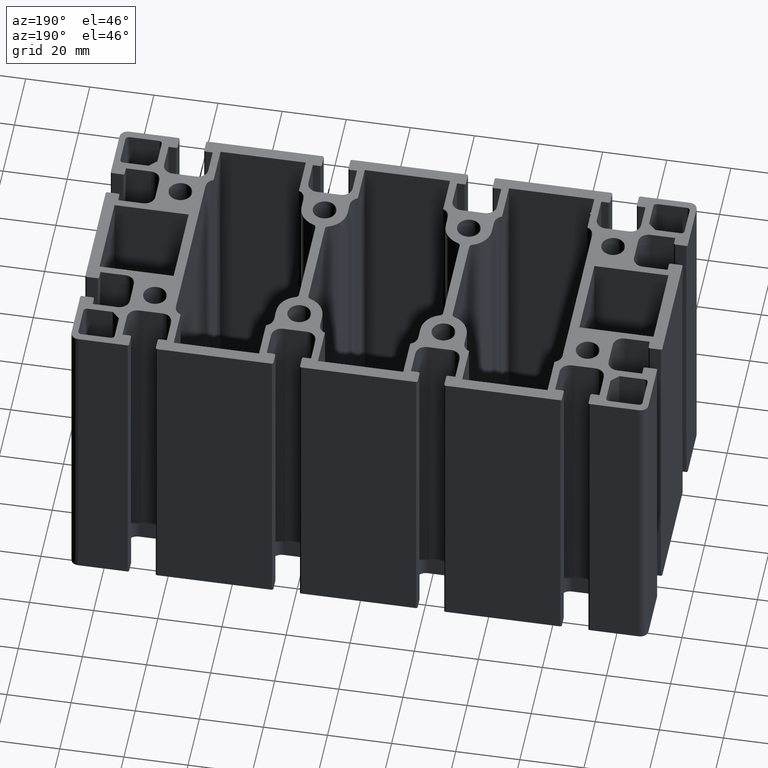
[diagram: clean part render]
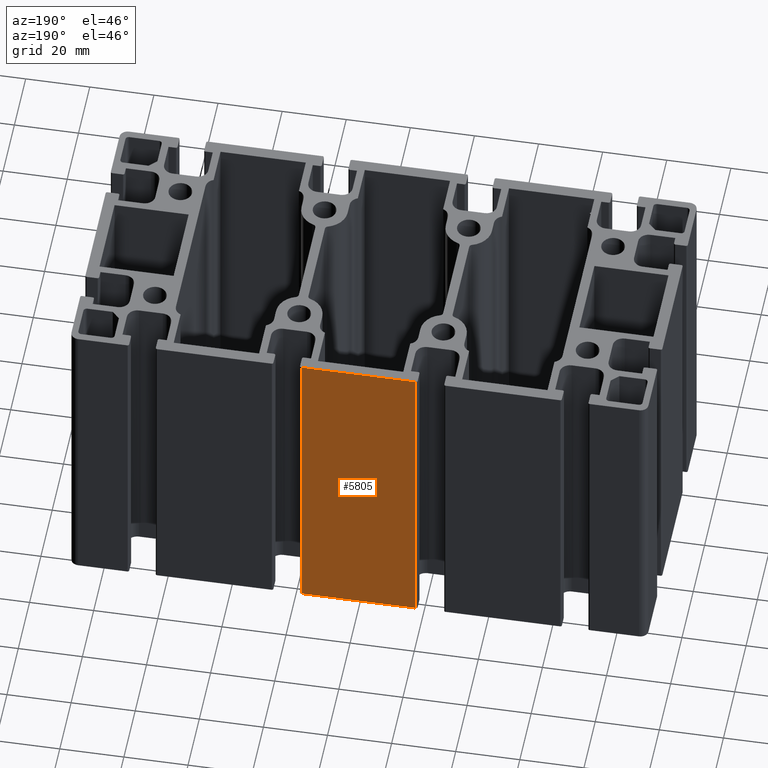
[diagram: same view with one face highlighted and labeled with its STEP entity id]
A machine part, auxiliary view. The second image highlights one B-rep face of the part: STEP entity #5805.
In plain terms, the highlighted planar face has unit normal (0, 1, 0).
Its self-contained STEP definition (entity closure, byte-faithful):
#702=FACE_OUTER_BOUND('',#998,.T.);
#998=EDGE_LOOP('',(#4736,#4737,#4738,#4739));
#1421=LINE('',#9119,#2021);
#1493=LINE('',#9327,#2093);
#1620=LINE('',#9685,#2220);
#1621=LINE('',#9686,#2221);
#2021=VECTOR('',#7412,100.);
#2093=VECTOR('',#7612,100.);
#2220=VECTOR('',#7961,35.7000000000009);
#2221=VECTOR('',#7962,35.7000000000009);
#2616=VERTEX_POINT('',#9116);
#2617=VERTEX_POINT('',#9118);
#2688=VERTEX_POINT('',#9323);
#2689=VERTEX_POINT('',#9325);
#3354=EDGE_CURVE('',#2616,#2617,#1421,.T.);
#3457=EDGE_CURVE('',#2688,#2689,#1493,.T.);
#3634=EDGE_CURVE('',#2616,#2688,#1620,.T.);
#3635=EDGE_CURVE('',#2617,#2689,#1621,.T.);
#4736=ORIENTED_EDGE('',*,*,#3354,.F.);
#4737=ORIENTED_EDGE('',*,*,#3634,.T.);
#4738=ORIENTED_EDGE('',*,*,#3457,.T.);
#4739=ORIENTED_EDGE('',*,*,#3635,.F.);
#5521=PLANE('',#6337);
#5805=ADVANCED_FACE('',(#702),#5521,.T.);
#6337=AXIS2_PLACEMENT_3D('',#9684,#7959,#7960);
#7412=DIRECTION('',(0.,0.,-1.));
#7612=DIRECTION('',(0.,0.,-1.));
#7959=DIRECTION('center_axis',(0.,1.,0.));
#7960=DIRECTION('ref_axis',(-1.,0.,0.));
#7961=DIRECTION('',(1.,0.,0.));
#7962=DIRECTION('',(1.,0.,0.));
#9116=CARTESIAN_POINT('',(-17.8500000000004,45.,100.));
#9118=CARTESIAN_POINT('',(-17.8500000000004,45.,0.));
#9119=CARTESIAN_POINT('',(-17.8500000000004,45.,0.));
#9323=CARTESIAN_POINT('',(17.8500000000004,45.0000000000001,100.));
#9325=CARTESIAN_POINT('',(17.8500000000004,45.0000000000001,0.));
#9327=CARTESIAN_POINT('',(17.8500000000004,45.,0.));
#9684=CARTESIAN_POINT('Origin',(87.5,45.,0.));
#9685=CARTESIAN_POINT('',(43.75,45.,100.));
#9686=CARTESIAN_POINT('',(43.75,45.,0.));